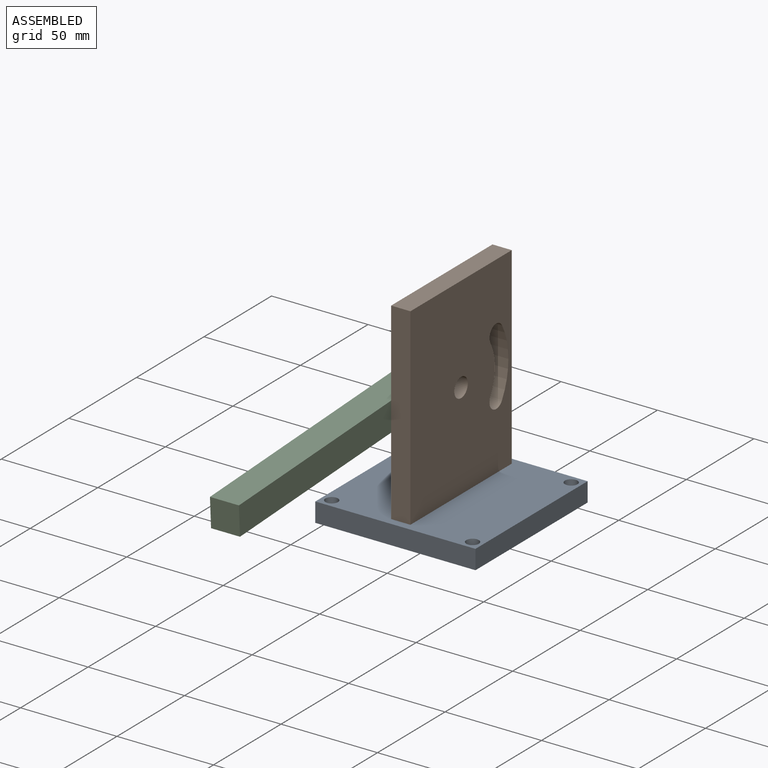
[diagram: assembled view]
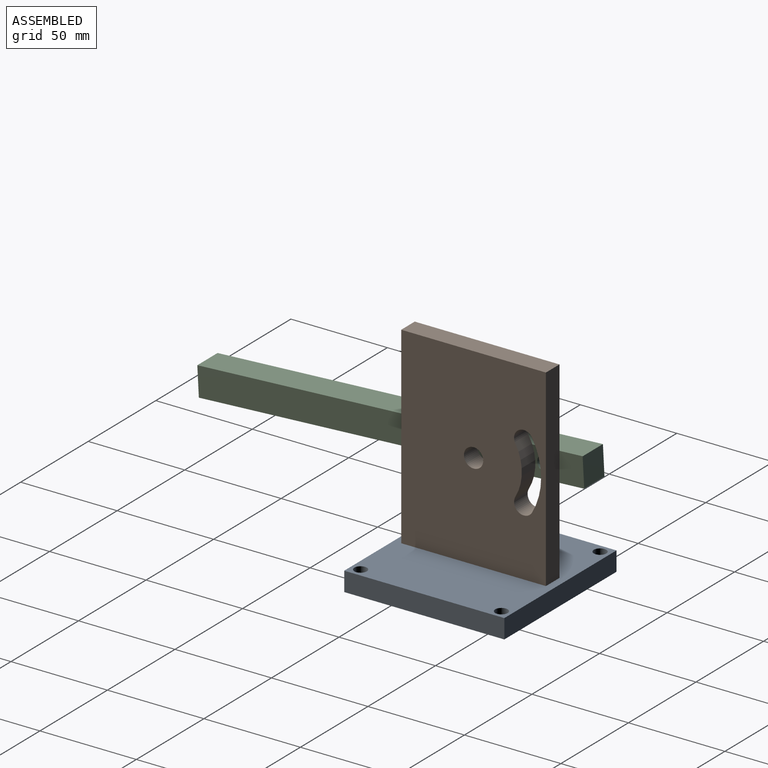
[diagram: assembled view, second angle]
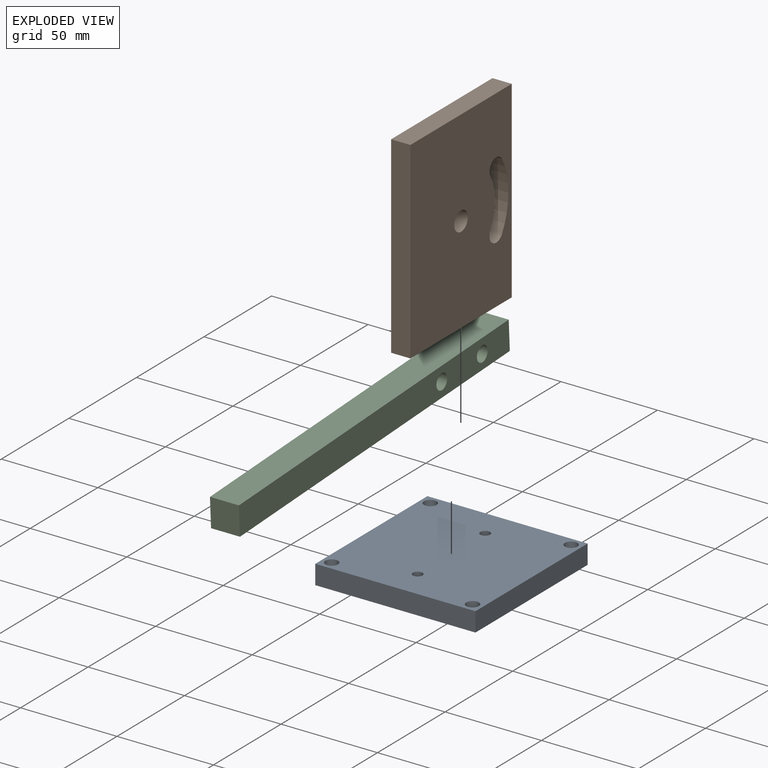
[diagram: exploded view]
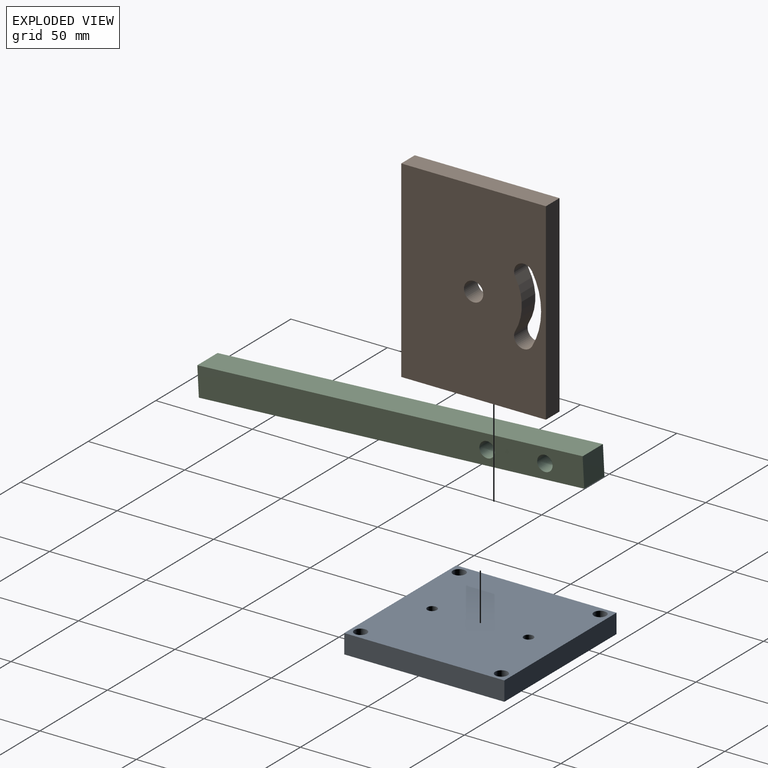
[diagram: exploded view, second angle]
ASSEMBLY  parts=3 mates=3
PART A: 16 faces, bbox 83x83x10 mm
  f0: plane 83x10mm, normal (1,0,0), area 830mm2, adj f1,f3,f4,f5
  f1: plane 83x10mm, normal (0,1,0), area 830mm2, adj f0,f2,f4,f5
  f2: plane 83x10mm, normal (-1,0,0), area 830mm2, adj f1,f3,f4,f5
  f3: plane 83x10mm, normal (0,-1,0), area 830mm2, adj f0,f2,f4,f5
  f4: plane 83x83mm, normal (0,0,1), area 6717mm2, adj f0,f1,f2,f3,f6,f7,f8,f9
  f5: plane 83x83mm, normal (0,0,-1), area 6557.5mm2, adj f0,f1,f2,f3,f6,f7,f8,f9
  f6: cylinder r=3.25mm len=10mm, axis (0,0,1), area 204.2mm2, adj f4,f5
  f7: cylinder r=3.25mm len=10mm, axis (0,0,1), area 204.2mm2, adj f4,f5
  f8: cylinder r=3.25mm len=10mm, axis (0,0,1), area 204.2mm2, adj f4,f5
  f9: cylinder r=3.25mm len=10mm, axis (0,0,1), area 204.2mm2, adj f4,f5
  f10: cylinder r=2.5mm len=5mm, axis (0,0,-1), area 62.8mm2, adj f4,f11
  f11: plane 11.25x11.25mm, normal (0,0,-1), area 79.8mm2, adj f10,f12
  f12: cylinder r=5.62mm len=11.25mm, axis (0,0,-1), area 212.1mm2, adj f5,f11
  f13: cylinder r=2.5mm len=5mm, axis (0,0,-1), area 62.8mm2, adj f4,f14
  f14: plane 11.25x11.25mm, normal (0,0,-1), area 79.8mm2, adj f13,f15
  f15: cylinder r=5.62mm len=11.25mm, axis (0,0,-1), area 212.1mm2, adj f5,f14
PART B: 15 faces, bbox 10x75x100 mm
  f0: plane 100x75mm, normal (1,0,0), area 7028.8mm2, adj f1,f3,f4,f5,f10,f11,f12,f13
  f1: plane 100x10mm, normal (0,1,0), area 1000mm2, adj f0,f2,f4,f5
  f2: plane 100x75mm, normal (-1,0,0), area 7028.8mm2, adj f1,f3,f4,f5,f10,f11,f12,f13
  f3: plane 100x10mm, normal (0,-1,0), area 1000mm2, adj f0,f2,f4,f5
  f4: plane 75x10mm, normal (0,0,1), area 750mm2, adj f0,f1,f2,f3
  f5: plane 75x10mm, normal (0,0,-1), area 710.7mm2, adj f0,f1,f2,f3,f7,f9
  f6: cone r=0mm half-angle=59deg, axis (0,0,-1), area 22.9mm2, adj f7
  f7: cylinder r=2.5mm len=15mm, axis (0,0,-1), area 235.6mm2, adj f5,f6
  f8: cone r=0mm half-angle=59deg, axis (0,0,-1), area 22.9mm2, adj f9
  f9: cylinder r=2.5mm len=15mm, axis (0,0,-1), area 235.6mm2, adj f5,f8
  f10: cylinder r=5mm len=10mm, axis (-1,0,0), area 314.2mm2, adj f0,f2
  f11: cylinder r=5mm len=10mm, axis (-1,0,0), area 157.1mm2, adj f0,f2,f12,f13
  f12: cylinder r=25mm len=25mm, axis (-1,0,0), area 261.8mm2, adj f0,f2,f11,f14
  f13: cylinder r=35mm len=35mm, axis (-1,0,0), area 366.5mm2, adj f0,f2,f11,f14
  f14: cylinder r=5mm len=10mm, axis (-1,0,0), area 157.1mm2, adj f0,f2,f12,f13
PART C: 8 faces, bbox 15x200x15 mm
  f0: plane 200x15mm, normal (-1,0,0), area 2899.5mm2, adj f1,f3,f4,f5,f6,f7
  f1: plane 15x15mm, normal (0,-1,0), area 225mm2, adj f0,f2,f4,f5
  f2: plane 200x15mm, normal (1,0,0), area 2899.5mm2, adj f1,f3,f4,f5,f6,f7
  f3: plane 15x15mm, normal (0,1,0), area 225mm2, adj f0,f2,f4,f5
  f4: plane 200x15mm, normal (0,0,1), area 3000mm2, adj f0,f1,f2,f3
  f5: plane 200x15mm, normal (0,0,-1), area 3000mm2, adj f0,f1,f2,f3
  f6: cylinder r=4mm len=15mm, axis (1,0,0), area 377mm2, adj f0,f2
  f7: cylinder r=4mm len=15mm, axis (1,0,0), area 377mm2, adj f0,f2
PLACE A t=(27.87,-42.23,-29.62)mm fixed
PLACE B t=(27.87,-42.23,-19.62)mm
PLACE C rot(axis=(1,0,0),3.1deg) t=(15.37,-91.76,20.21)mm
MATE revolute B.f6 <-> A.f13  axis (0,0,-1) through (27.87,-67.23,-19.62)mm
MATE revolute C.f7 <-> B.f10  axis (1,0,0) through (22.87,-42.23,30.38)mm
MATE revolute B.f8 <-> A.f10  axis (0,0,-1) through (27.87,-17.23,-19.62)mm
